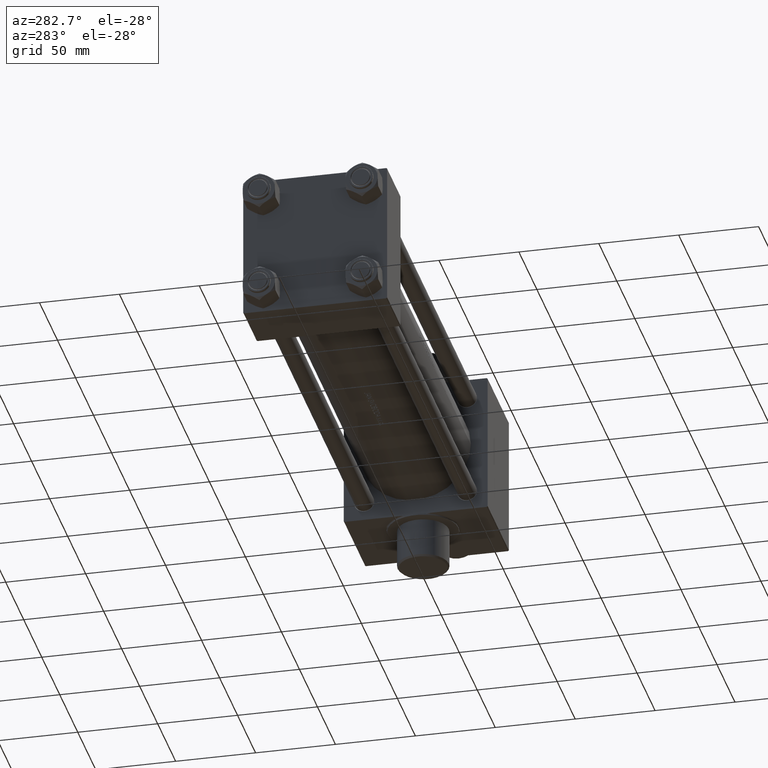
[diagram: clean part render]
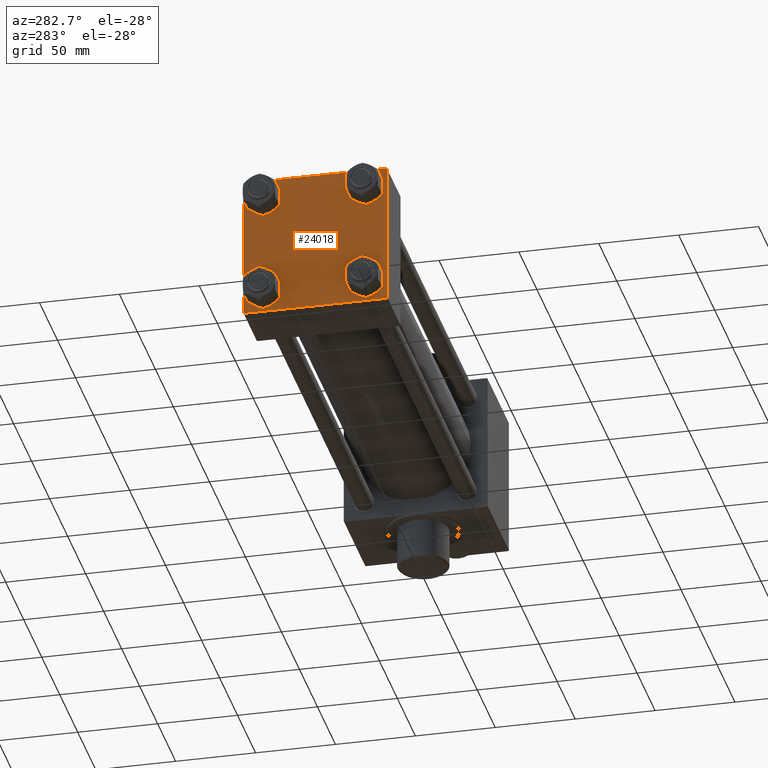
[diagram: same view with one face highlighted and labeled with its STEP entity id]
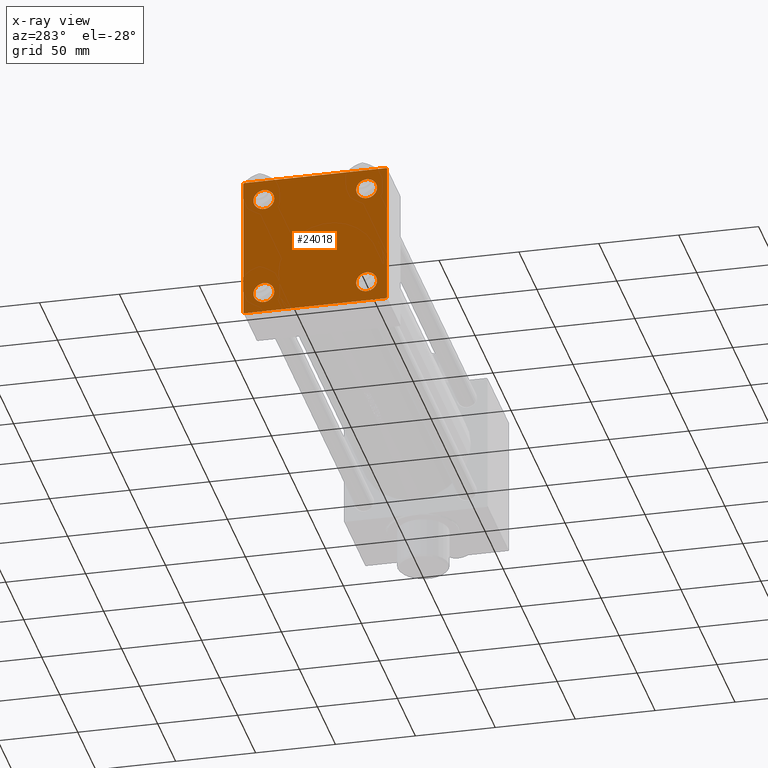
[diagram: x-ray of the same camera — body ghosted, the highlighted face saturated]
A machine part, auxiliary view. The second image highlights one B-rep face of the part: STEP entity #24018.
The next image is the same camera in x-ray: the body ghosted, the highlighted face saturated — about 0% of this face is hidden behind the body in this view.
In plain terms, the highlighted planar face has unit normal (-1, 0, -0).
Its self-contained STEP definition (entity closure, byte-faithful):
#49 = EDGE_CURVE ( 'NONE', #46022, #6247, #6617, .T. ) ;
#276 = CARTESIAN_POINT ( 'NONE',  ( 0.000000000000000000, 32.14999999999999147, 25.65000000000002700 ) ) ;
#460 = LINE ( 'NONE', #33303, #40069 ) ;
#481 = CARTESIAN_POINT ( 'NONE',  ( 0.000000000000000000, -32.14999999999997726, -32.15000000000001279 ) ) ;
#810 = DIRECTION ( 'NONE',  ( 1.000000000000000000, -0.000000000000000000, 0.000000000000000000 ) ) ;
#1078 = VERTEX_POINT ( 'NONE', #5569 ) ;
#1423 = CARTESIAN_POINT ( 'NONE',  ( 0.000000000000000000, -45.00000000000000711, 45.00000000000000000 ) ) ;
#1430 = CARTESIAN_POINT ( 'NONE',  ( 0.000000000000000000, 44.74999999999998579, -44.74999999999998579 ) ) ;
#1580 = DIRECTION ( 'NONE',  ( 1.000000000000000000, -0.000000000000000000, 0.000000000000000000 ) ) ;
#1650 = CARTESIAN_POINT ( 'NONE',  ( 0.000000000000000000, -45.00000000000000000, -44.49999999999995737 ) ) ;
#1895 = CARTESIAN_POINT ( 'NONE',  ( 0.000000000000000000, 32.14999999999999147, -32.15000000000000568 ) ) ;
#2211 = CARTESIAN_POINT ( 'NONE',  ( 0.000000000000000000, -32.14999999999997726, 32.15000000000001279 ) ) ;
#2252 = VERTEX_POINT ( 'NONE', #15060 ) ;
#2403 = CARTESIAN_POINT ( 'NONE',  ( 0.000000000000000000, 44.99999999999998579, -44.49999999999995737 ) ) ;
#2989 = LINE ( 'NONE', #17728, #25638 ) ;
#3179 = CARTESIAN_POINT ( 'NONE',  ( 0.000000000000000000, 32.14999999999999147, -25.65000000000002700 ) ) ;
#4189 = VERTEX_POINT ( 'NONE', #39102 ) ;
#4247 = EDGE_LOOP ( 'NONE', ( #8281, #18779 ) ) ;
#5217 = LINE ( 'NONE', #1423, #19873 ) ;
#5569 = CARTESIAN_POINT ( 'NONE',  ( 0.000000000000000000, -32.14999999999997726, 38.65000000000003411 ) ) ;
#5755 = DIRECTION ( 'NONE',  ( 0.000000000000000000, 0.000000000000000000, 1.000000000000000000 ) ) ;
#5851 = CIRCLE ( 'NONE', #10446, 6.499999999999977796 ) ;
#6247 = VERTEX_POINT ( 'NONE', #45613 ) ;
#6617 = CIRCLE ( 'NONE', #12697, 6.499999999999977796 ) ;
#7552 = CARTESIAN_POINT ( 'NONE',  ( 0.000000000000000000, -32.14999999999997726, -32.15000000000001279 ) ) ;
#7718 = DIRECTION ( 'NONE',  ( 0.000000000000000000, 0.000000000000000000, 1.000000000000000000 ) ) ;
#8281 = ORIENTED_EDGE ( 'NONE', *, *, #16421, .T. ) ;
#8994 = ORIENTED_EDGE ( 'NONE', *, *, #17160, .T. ) ;
#9666 = AXIS2_PLACEMENT_3D ( 'NONE', #7552, #31090, #19406 ) ;
#10064 = DIRECTION ( 'NONE',  ( 0.000000000000000000, 0.7071067811865474617, -0.7071067811865474617 ) ) ;
#10446 = AXIS2_PLACEMENT_3D ( 'NONE', #44816, #30308, #16920 ) ;
#10645 = EDGE_CURVE ( 'NONE', #2252, #11862, #37629, .T. ) ;
#10816 = ORIENTED_EDGE ( 'NONE', *, *, #27172, .T. ) ;
#10960 = FACE_BOUND ( 'NONE', #23508, .T. ) ;
#11079 = EDGE_CURVE ( 'NONE', #22122, #32532, #38553, .T. ) ;
#11209 = VERTEX_POINT ( 'NONE', #28454 ) ;
#11272 = ORIENTED_EDGE ( 'NONE', *, *, #49, .T. ) ;
#11774 = CARTESIAN_POINT ( 'NONE',  ( 0.000000000000000000, -44.49999999999995737, 45.00000000000000000 ) ) ;
#11862 = VERTEX_POINT ( 'NONE', #1650 ) ;
#11868 = AXIS2_PLACEMENT_3D ( 'NONE', #1895, #38540, #20449 ) ;
#12196 = DIRECTION ( 'NONE',  ( 1.000000000000000000, -0.000000000000000000, 0.000000000000000000 ) ) ;
#12209 = LINE ( 'NONE', #26038, #37153 ) ;
#12252 = CARTESIAN_POINT ( 'NONE',  ( 0.000000000000000000, -32.14999999999997726, -25.65000000000003411 ) ) ;
#12697 = AXIS2_PLACEMENT_3D ( 'NONE', #27291, #37757, #41543 ) ;
#12802 = VERTEX_POINT ( 'NONE', #41006 ) ;
#13318 = DIRECTION ( 'NONE',  ( 0.000000000000000000, -1.000000000000000000, -1.541976423090495633E-16 ) ) ;
#13626 = ORIENTED_EDGE ( 'NONE', *, *, #26236, .T. ) ;
#13836 = DIRECTION ( 'NONE',  ( -0.000000000000000000, 0.000000000000000000, 1.000000000000000000 ) ) ;
#14493 = AXIS2_PLACEMENT_3D ( 'NONE', #20963, #46426, #13836 ) ;
#14771 = EDGE_LOOP ( 'NONE', ( #20801, #18532 ) ) ;
#14991 = DIRECTION ( 'NONE',  ( 1.000000000000000000, -0.000000000000000000, 0.000000000000000000 ) ) ;
#15060 = CARTESIAN_POINT ( 'NONE',  ( 0.000000000000000000, -44.49999999999995737, -45.00000000000000000 ) ) ;
#15133 = ORIENTED_EDGE ( 'NONE', *, *, #30261, .F. ) ;
#15683 = DIRECTION ( 'NONE',  ( 0.000000000000000000, 7.709882115452476934E-17, -1.000000000000000000 ) ) ;
#16084 = DIRECTION ( 'NONE',  ( 0.000000000000000000, 0.000000000000000000, 1.000000000000000000 ) ) ;
#16178 = DIRECTION ( 'NONE',  ( -0.000000000000000000, -0.7071067811865474617, -0.7071067811865474617 ) ) ;
#16297 = EDGE_CURVE ( 'NONE', #24589, #18098, #2989, .T. ) ;
#16421 = EDGE_CURVE ( 'NONE', #23626, #11209, #5851, .T. ) ;
#16554 = DIRECTION ( 'NONE',  ( 0.000000000000000000, 0.000000000000000000, -1.000000000000000000 ) ) ;
#16920 = DIRECTION ( 'NONE',  ( 0.000000000000000000, 0.000000000000000000, 1.000000000000000000 ) ) ;
#17160 = EDGE_CURVE ( 'NONE', #6247, #46022, #36309, .T. ) ;
#17206 = CIRCLE ( 'NONE', #11868, 6.499999999999977796 ) ;
#17460 = CARTESIAN_POINT ( 'NONE',  ( 0.000000000000000000, 44.99999999999998579, 44.50000000000001421 ) ) ;
#17728 = CARTESIAN_POINT ( 'NONE',  ( -0.000000000000000000, -44.75000000000029843, 44.74999999999967315 ) ) ;
#18093 = VECTOR ( 'NONE', #16178, 1000.000000000000114 ) ;
#18098 = VERTEX_POINT ( 'NONE', #11774 ) ;
#18158 = VECTOR ( 'NONE', #10064, 1000.000000000000114 ) ;
#18405 = EDGE_CURVE ( 'NONE', #20874, #4189, #34033, .T. ) ;
#18532 = ORIENTED_EDGE ( 'NONE', *, *, #11079, .T. ) ;
#18779 = ORIENTED_EDGE ( 'NONE', *, *, #35035, .T. ) ;
#19406 = DIRECTION ( 'NONE',  ( 0.000000000000000000, 0.000000000000000000, 1.000000000000000000 ) ) ;
#19650 = CARTESIAN_POINT ( 'NONE',  ( 0.000000000000000000, 32.14999999999999147, 32.15000000000000568 ) ) ;
#19873 = VECTOR ( 'NONE', #15683, 1000.000000000000000 ) ;
#19879 = CIRCLE ( 'NONE', #27507, 6.500000000000019540 ) ;
#20163 = ORIENTED_EDGE ( 'NONE', *, *, #10645, .T. ) ;
#20449 = DIRECTION ( 'NONE',  ( 0.000000000000000000, 0.000000000000000000, 1.000000000000000000 ) ) ;
#20671 = EDGE_CURVE ( 'NONE', #12802, #25526, #45526, .T. ) ;
#20801 = ORIENTED_EDGE ( 'NONE', *, *, #38515, .T. ) ;
#20874 = VERTEX_POINT ( 'NONE', #2403 ) ;
#20963 = CARTESIAN_POINT ( 'NONE',  ( 0.000000000000000000, 0.000000000000000000, 0.000000000000000000 ) ) ;
#22122 = VERTEX_POINT ( 'NONE', #44761 ) ;
#22144 = VECTOR ( 'NONE', #13318, 1000.000000000000000 ) ;
#22241 = DIRECTION ( 'NONE',  ( 0.000000000000000000, -1.000000000000000000, -1.541976423090495387E-16 ) ) ;
#23508 = EDGE_LOOP ( 'NONE', ( #10816, #28684 ) ) ;
#23626 = VERTEX_POINT ( 'NONE', #3179 ) ;
#23772 = AXIS2_PLACEMENT_3D ( 'NONE', #2211, #12196, #5755 ) ;
#23883 = CARTESIAN_POINT ( 'NONE',  ( 0.000000000000000000, 44.74999999999999289, 44.74999999999999289 ) ) ;
#24018 = ADVANCED_FACE ( 'NONE', ( #10960, #28117, #39284, #39050, #39987 ), #35253, .T. ) ;
#24589 = VERTEX_POINT ( 'NONE', #27235 ) ;
#25526 = VERTEX_POINT ( 'NONE', #17460 ) ;
#25638 = VECTOR ( 'NONE', #35353, 1000.000000000000114 ) ;
#25687 = AXIS2_PLACEMENT_3D ( 'NONE', #481, #14991, #29531 ) ;
#26038 = CARTESIAN_POINT ( 'NONE',  ( 0.000000000000000000, 44.99999999999998579, 45.00000000000001421 ) ) ;
#26236 = EDGE_CURVE ( 'NONE', #4189, #2252, #45913, .T. ) ;
#26340 = VECTOR ( 'NONE', #41420, 1000.000000000000114 ) ;
#27172 = EDGE_CURVE ( 'NONE', #1078, #35383, #19879, .T. ) ;
#27235 = CARTESIAN_POINT ( 'NONE',  ( 0.000000000000000000, -45.00000000000000711, 44.49999999999997158 ) ) ;
#27291 = CARTESIAN_POINT ( 'NONE',  ( 0.000000000000000000, 32.14999999999999147, 32.15000000000000568 ) ) ;
#27507 = AXIS2_PLACEMENT_3D ( 'NONE', #30305, #810, #7718 ) ;
#27841 = CARTESIAN_POINT ( 'NONE',  ( 0.000000000000000000, 44.99999999999998579, -44.99999999999998579 ) ) ;
#28117 = FACE_BOUND ( 'NONE', #14771, .T. ) ;
#28454 = CARTESIAN_POINT ( 'NONE',  ( 0.000000000000000000, 32.14999999999999147, -38.64999999999998437 ) ) ;
#28624 = ORIENTED_EDGE ( 'NONE', *, *, #41350, .T. ) ;
#28684 = ORIENTED_EDGE ( 'NONE', *, *, #32658, .T. ) ;
#29248 = ORIENTED_EDGE ( 'NONE', *, *, #20671, .T. ) ;
#29531 = DIRECTION ( 'NONE',  ( 0.000000000000000000, 0.000000000000000000, 1.000000000000000000 ) ) ;
#30200 = AXIS2_PLACEMENT_3D ( 'NONE', #19650, #1580, #16084 ) ;
#30261 = EDGE_CURVE ( 'NONE', #24589, #11862, #5217, .T. ) ;
#30305 = CARTESIAN_POINT ( 'NONE',  ( 0.000000000000000000, -32.14999999999997726, 32.15000000000001279 ) ) ;
#30308 = DIRECTION ( 'NONE',  ( 1.000000000000000000, -0.000000000000000000, 0.000000000000000000 ) ) ;
#31090 = DIRECTION ( 'NONE',  ( 1.000000000000000000, -0.000000000000000000, 0.000000000000000000 ) ) ;
#32532 = VERTEX_POINT ( 'NONE', #12252 ) ;
#32658 = EDGE_CURVE ( 'NONE', #35383, #1078, #33634, .T. ) ;
#32690 = ORIENTED_EDGE ( 'NONE', *, *, #18405, .T. ) ;
#33303 = CARTESIAN_POINT ( 'NONE',  ( 0.000000000000000000, 44.99999999999998579, 45.00000000000001421 ) ) ;
#33634 = CIRCLE ( 'NONE', #23772, 6.500000000000019540 ) ;
#34033 = LINE ( 'NONE', #1430, #18093 ) ;
#34814 = ORIENTED_EDGE ( 'NONE', *, *, #16297, .T. ) ;
#35035 = EDGE_CURVE ( 'NONE', #11209, #23626, #17206, .T. ) ;
#35253 = PLANE ( 'NONE',  #14493 ) ;
#35353 = DIRECTION ( 'NONE',  ( -0.000000000000000000, 0.7071067811865425767, 0.7071067811865524577 ) ) ;
#35383 = VERTEX_POINT ( 'NONE', #44327 ) ;
#36309 = CIRCLE ( 'NONE', #30200, 6.499999999999977796 ) ;
#37153 = VECTOR ( 'NONE', #22241, 1000.000000000000000 ) ;
#37629 = LINE ( 'NONE', #41664, #26340 ) ;
#37757 = DIRECTION ( 'NONE',  ( 1.000000000000000000, -0.000000000000000000, 0.000000000000000000 ) ) ;
#37773 = ORIENTED_EDGE ( 'NONE', *, *, #46557, .F. ) ;
#38515 = EDGE_CURVE ( 'NONE', #32532, #22122, #44641, .T. ) ;
#38540 = DIRECTION ( 'NONE',  ( 1.000000000000000000, -0.000000000000000000, 0.000000000000000000 ) ) ;
#38553 = CIRCLE ( 'NONE', #9666, 6.499999999999977796 ) ;
#39050 = FACE_BOUND ( 'NONE', #47044, .T. ) ;
#39102 = CARTESIAN_POINT ( 'NONE',  ( 0.000000000000000000, 44.49999999999998579, -44.99999999999998579 ) ) ;
#39284 = FACE_BOUND ( 'NONE', #4247, .T. ) ;
#39987 = FACE_OUTER_BOUND ( 'NONE', #43516, .T. ) ;
#40069 = VECTOR ( 'NONE', #16554, 1000.000000000000000 ) ;
#41006 = CARTESIAN_POINT ( 'NONE',  ( 0.000000000000000000, 44.49999999999998579, 45.00000000000001421 ) ) ;
#41350 = EDGE_CURVE ( 'NONE', #25526, #20874, #460, .T. ) ;
#41420 = DIRECTION ( 'NONE',  ( 0.000000000000000000, -0.7071067811865474617, 0.7071067811865474617 ) ) ;
#41543 = DIRECTION ( 'NONE',  ( 0.000000000000000000, 0.000000000000000000, 1.000000000000000000 ) ) ;
#41664 = CARTESIAN_POINT ( 'NONE',  ( 0.000000000000000000, -44.74999999999998579, -44.74999999999998579 ) ) ;
#43516 = EDGE_LOOP ( 'NONE', ( #28624, #32690, #13626, #20163, #15133, #34814, #37773, #29248 ) ) ;
#44327 = CARTESIAN_POINT ( 'NONE',  ( 0.000000000000000000, -32.14999999999997726, 25.64999999999999147 ) ) ;
#44641 = CIRCLE ( 'NONE', #25687, 6.499999999999977796 ) ;
#44761 = CARTESIAN_POINT ( 'NONE',  ( 0.000000000000000000, -32.14999999999997726, -38.64999999999999147 ) ) ;
#44816 = CARTESIAN_POINT ( 'NONE',  ( 0.000000000000000000, 32.14999999999999147, -32.15000000000000568 ) ) ;
#45526 = LINE ( 'NONE', #23883, #18158 ) ;
#45613 = CARTESIAN_POINT ( 'NONE',  ( 0.000000000000000000, 32.14999999999999147, 38.64999999999999147 ) ) ;
#45913 = LINE ( 'NONE', #27841, #22144 ) ;
#46022 = VERTEX_POINT ( 'NONE', #276 ) ;
#46426 = DIRECTION ( 'NONE',  ( -1.000000000000000000, 0.000000000000000000, -0.000000000000000000 ) ) ;
#46557 = EDGE_CURVE ( 'NONE', #12802, #18098, #12209, .T. ) ;
#47044 = EDGE_LOOP ( 'NONE', ( #8994, #11272 ) ) ;